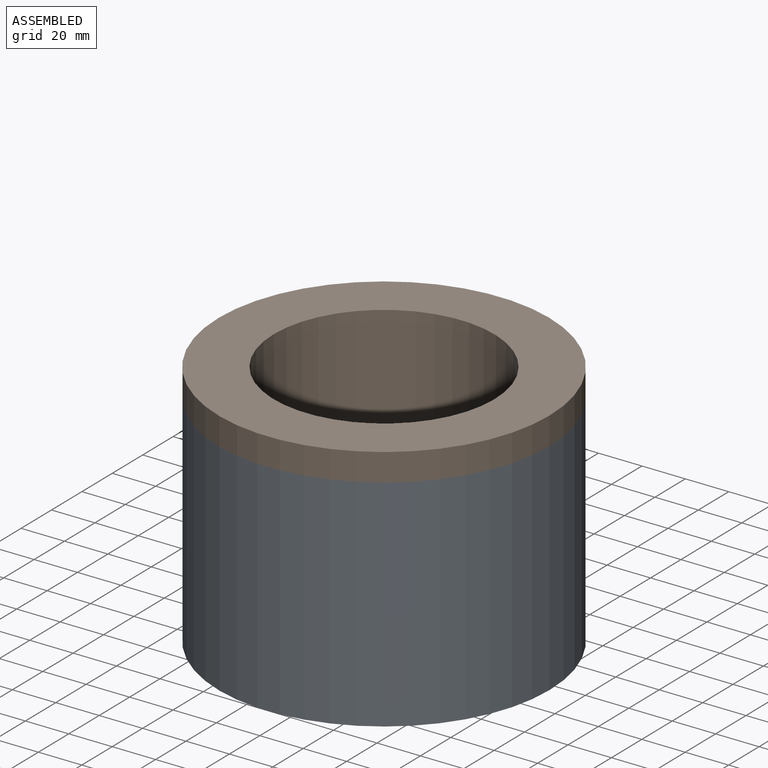
[diagram: assembled view]
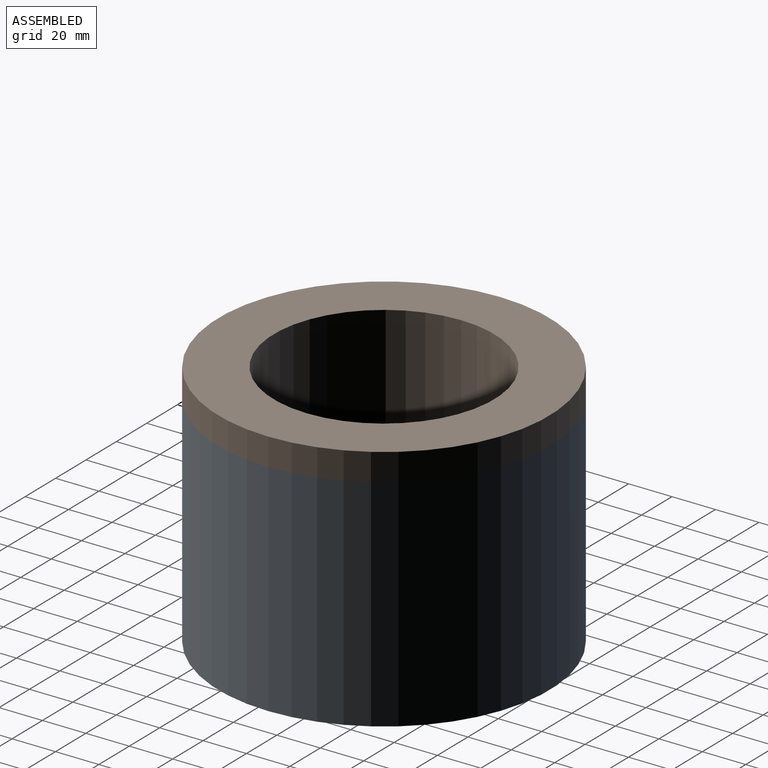
[diagram: assembled view, second angle]
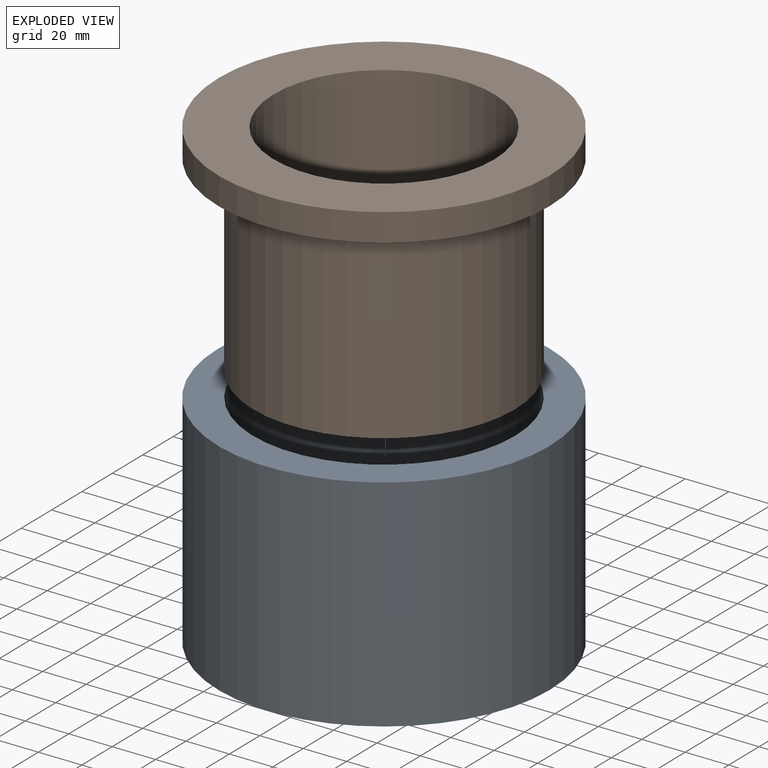
[diagram: exploded view]
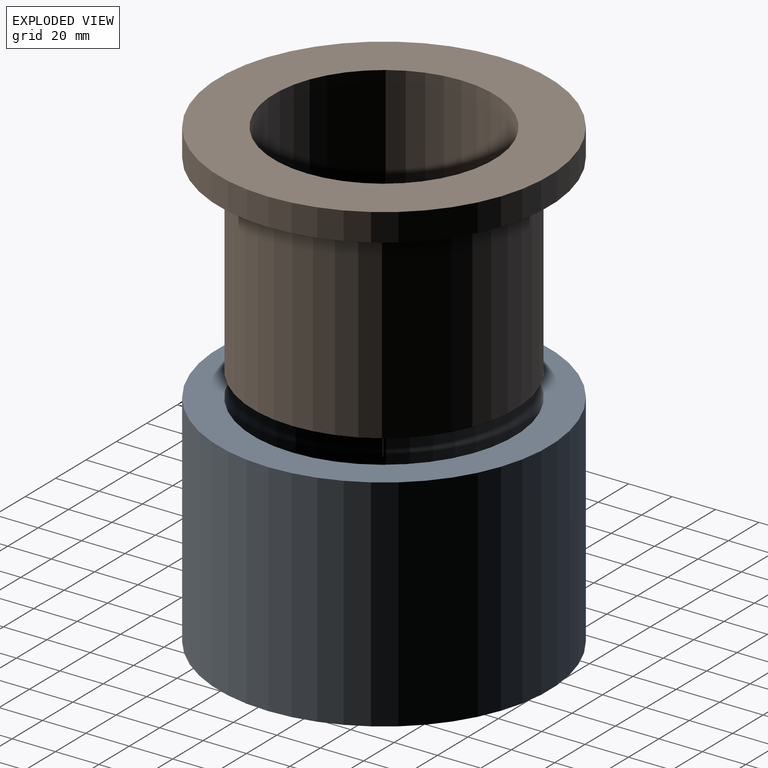
[diagram: exploded view, second angle]
ASSEMBLY  parts=2 mates=2
PART A: 6 faces, bbox 152.4x152.4x101.6 mm
  f0: cylinder r=76.2mm len=152.4mm, axis (0,0,-1), area 48643.9mm2, adj f1,f2
  f1: plane 152.4x152.4mm, normal (0,0,1), area 6808.9mm2, adj f0,f3
  f2: plane 152.4x152.4mm, normal (0,0,-1), area 9089.1mm2, adj f0,f5
  f3: cylinder r=60.32mm len=120.65mm, axis (0,0,1), area 33696mm2, adj f1,f4
  f4: plane 120.65x120.65mm, normal (0,0,1), area 2280.2mm2, adj f3,f5
  f5: cylinder r=53.98mm len=107.95mm, axis (0,0,-1), area 4307mm2, adj f2,f4
PART B: 6 faces, bbox 152.4x152.4x101.6 mm
  f0: cylinder r=50.8mm len=101.6mm, axis (0,0,-1), area 32429.3mm2, adj f2,f4
  f1: cylinder r=60.32mm len=120.65mm, axis (0,0,-1), area 33696mm2, adj f2,f5
  f2: plane 120.65x120.65mm, normal (0,0,-1), area 3325.3mm2, adj f0,f1
  f3: cylinder r=76.2mm len=152.4mm, axis (0,0,-1), area 6080.5mm2, adj f4,f5
  f4: plane 152.4x152.4mm, normal (0,0,1), area 10134.1mm2, adj f0,f3
  f5: plane 152.4x152.4mm, normal (0,0,-1), area 6808.9mm2, adj f1,f3
PLACE A t=(-85.45,89.54,-3.33)mm
PLACE B t=(-85.45,89.54,9.37)mm
MATE slider A.f0 <-> B.f0  axis (0,0,1) through (-85.45,89.54,53.82)mm
MATE fastened B.f0 <-> A.f0  axis (0,0,-1) through (-85.45,89.54,98.27)mm
